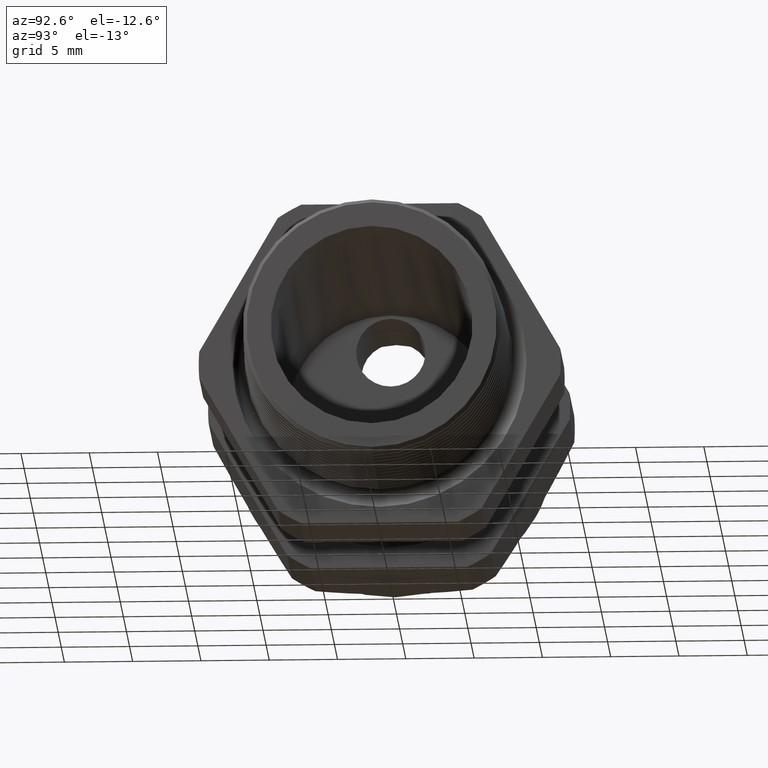
[diagram: clean part render]
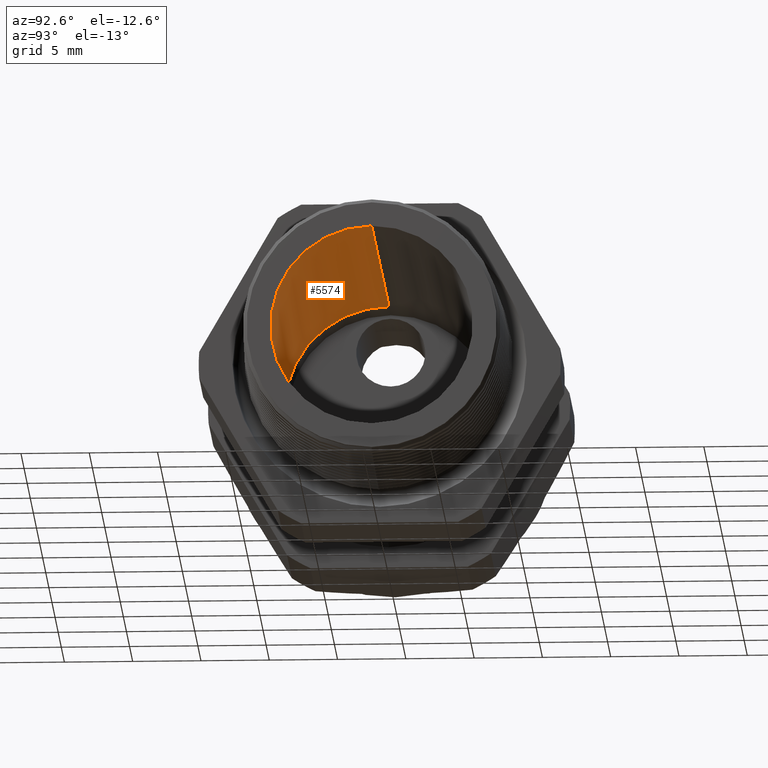
[diagram: same view with one face highlighted and labeled with its STEP entity id]
A machine part, auxiliary view. The second image highlights one B-rep face of the part: STEP entity #5574.
In plain terms, the highlighted conical surface has half-angle 0.446 deg.
Its self-contained STEP definition (entity closure, byte-faithful):
#5098 = DIRECTION ( 'NONE',  ( -0.9999697209564802900, 0.0000000000000000000, 0.007781848766137508500 ) ) ;
#5099 = VECTOR ( 'NONE', #5098, 39.37007874015748100 ) ;
#5100 = CARTESIAN_POINT ( 'NONE',  ( -0.9054330708661418900, 0.0000000000000000000, 0.2999999999999999900 ) ) ;
#5101 = LINE ( 'NONE', #5100, #5099 ) ;
#5102 = DIRECTION ( 'NONE',  ( -0.9999697209564802900, 9.530016182899079500E-019, -0.007781848766137508500 ) ) ;
#5103 = VECTOR ( 'NONE', #5102, 39.37007874015748100 ) ;
#5104 = CARTESIAN_POINT ( 'NONE',  ( -0.9054330708661418900, 3.673940397442058900E-017, -0.2999999999999999900 ) ) ;
#5105 = LINE ( 'NONE', #5104, #5103 ) ;
#5125 = CARTESIAN_POINT ( 'NONE',  ( 0.2000000000000000400, 0.0000000000000000000, 0.2913974265437366300 ) ) ;
#5128 = CARTESIAN_POINT ( 'NONE',  ( 0.2000000000000000400, 3.621264827203845100E-017, -0.2913974265437366300 ) ) ;
#5156 = DIRECTION ( 'NONE',  ( 0.0000000000000000000, 0.0000000000000000000, 1.000000000000000000 ) ) ;
#5157 = DIRECTION ( 'NONE',  ( -1.000000000000000000, 0.0000000000000000000, 0.0000000000000000000 ) ) ;
#5158 = CARTESIAN_POINT ( 'NONE',  ( -0.9054330708661418900, 0.0000000000000000000, 0.0000000000000000000 ) ) ;
#5159 = AXIS2_PLACEMENT_3D ( 'NONE', #5158, #5157, #5156 ) ;
#5161 = CONICAL_SURFACE ( 'NONE', #5159, 0.2999999999999999900, 0.007781927309401279900 ) ;
#5162 = FACE_OUTER_BOUND ( 'NONE', #5569, .T. ) ;
#5179 = DIRECTION ( 'NONE',  ( 0.0000000000000000000, 0.0000000000000000000, -1.000000000000000000 ) ) ;
#5180 = DIRECTION ( 'NONE',  ( 1.000000000000000000, 0.0000000000000000000, 0.0000000000000000000 ) ) ;
#5181 = CARTESIAN_POINT ( 'NONE',  ( 0.2000000000000000400, 0.0000000000000000000, 0.0000000000000000000 ) ) ;
#5182 = AXIS2_PLACEMENT_3D ( 'NONE', #5181, #5180, #5179 ) ;
#5183 = CIRCLE ( 'NONE', #5182, 0.2913974265437366300 ) ;
#5203 = CARTESIAN_POINT ( 'NONE',  ( -0.9054330708661418900, 0.0000000000000000000, 0.2999999999999999900 ) ) ;
#5204 = DIRECTION ( 'NONE',  ( 0.0000000000000000000, 0.0000000000000000000, -1.000000000000000000 ) ) ;
#5205 = DIRECTION ( 'NONE',  ( 1.000000000000000000, 0.0000000000000000000, 0.0000000000000000000 ) ) ;
#5206 = CARTESIAN_POINT ( 'NONE',  ( -0.9054330708661418900, 0.0000000000000000000, 0.0000000000000000000 ) ) ;
#5207 = AXIS2_PLACEMENT_3D ( 'NONE', #5206, #5205, #5204 ) ;
#5208 = CIRCLE ( 'NONE', #5207, 0.2999999999999999900 ) ;
#5209 = CARTESIAN_POINT ( 'NONE',  ( -0.9054330708661418900, 3.673940397442058900E-017, -0.2999999999999999900 ) ) ;
#5535 = EDGE_CURVE ( 'NONE', #5555, #5579, #5105, .T. ) ;
#5536 = ORIENTED_EDGE ( 'NONE', *, *, #5538, .F. ) ;
#5537 = ORIENTED_EDGE ( 'NONE', *, *, #5580, .F. ) ;
#5538 = EDGE_CURVE ( 'NONE', #5560, #5581, #5101, .T. ) ;
#5555 = VERTEX_POINT ( 'NONE', #5128 ) ;
#5557 = ORIENTED_EDGE ( 'NONE', *, *, #5535, .T. ) ;
#5560 = VERTEX_POINT ( 'NONE', #5125 ) ;
#5563 = ORIENTED_EDGE ( 'NONE', *, *, #5564, .T. ) ;
#5564 = EDGE_CURVE ( 'NONE', #5560, #5555, #5183, .T. ) ;
#5569 = EDGE_LOOP ( 'NONE', ( #5563, #5557, #5537, #5536 ) ) ;
#5574 = ADVANCED_FACE ( 'NONE', ( #5162 ), #5161, .F. ) ;
#5579 = VERTEX_POINT ( 'NONE', #5209 ) ;
#5580 = EDGE_CURVE ( 'NONE', #5581, #5579, #5208, .T. ) ;
#5581 = VERTEX_POINT ( 'NONE', #5203 ) ;